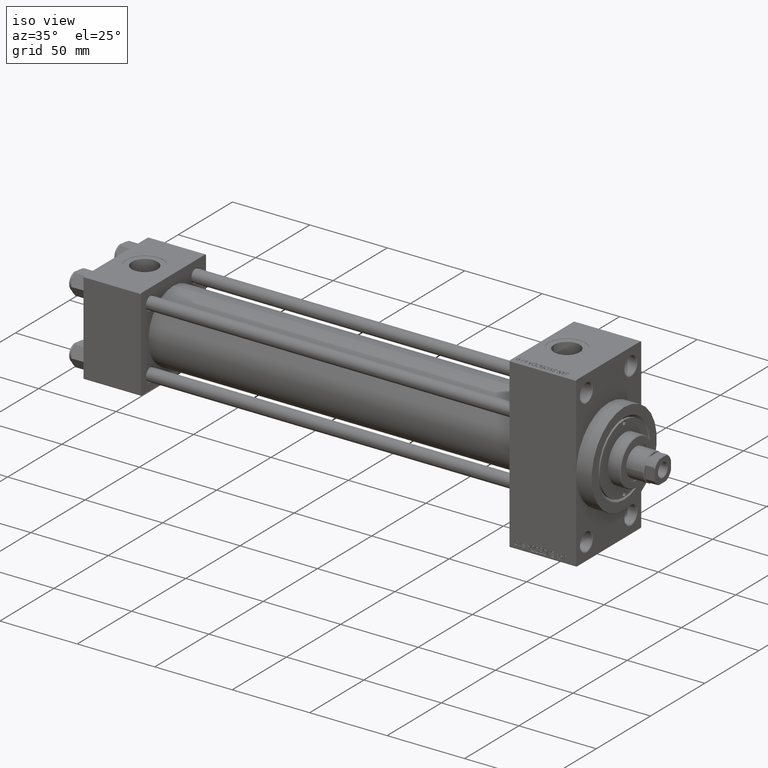
[diagram: clean part render]
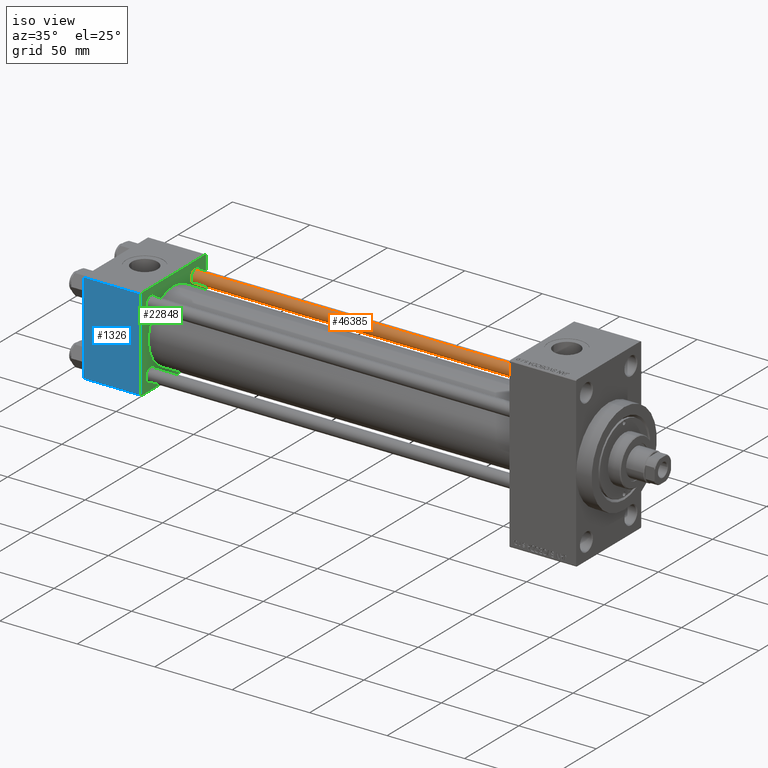
[diagram: same view with three faces highlighted in distinct colors, each labeled with its STEP entity id]
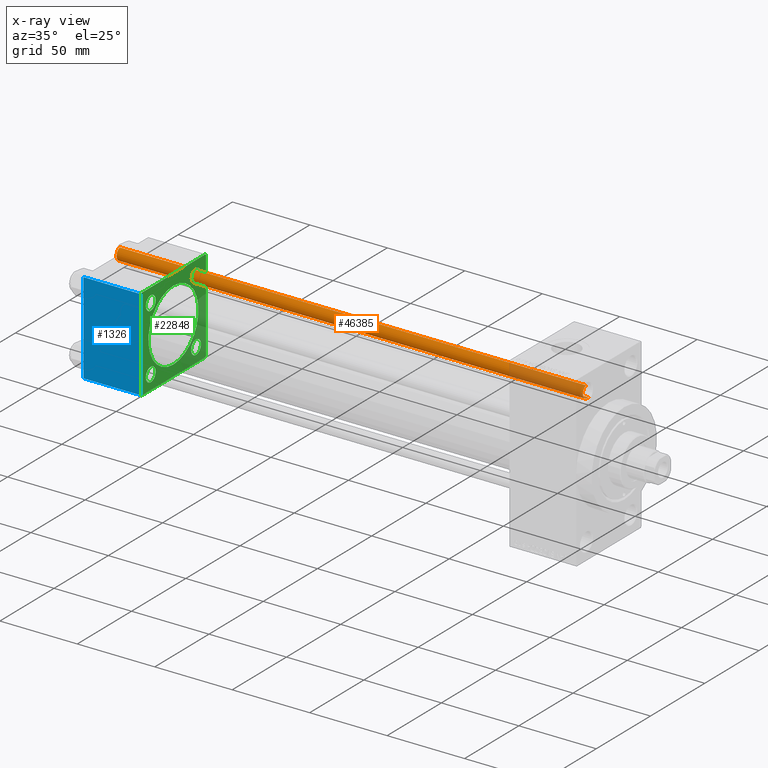
[diagram: x-ray of the same camera — body ghosted, the three highlighted faces saturated]
A machine part, iso view with three faces highlighted in distinct colors.
The next image is the same camera in x-ray (body ghosted, the three faces saturated) — at least one of them is partly hidden behind the body in this view.
Their STEP definitions:

[orange] entity #46385 — the highlighted cylindrical surface (edge-blend (fillet) strip) has radius 4 mm, axis along (-1, -0, 0).
#224 = ORIENTED_EDGE ( 'NONE', *, *, #47746, .T. ) ;
#358 = ORIENTED_EDGE ( 'NONE', *, *, #23508, .T. ) ;
#392 = CARTESIAN_POINT ( 'NONE',  ( -4.000000000000000000, 0.000000000000000000, 301.4999999999999432 ) ) ;
#821 = AXIS2_PLACEMENT_3D ( 'NONE', #8523, #24049, #16775 ) ;
#1016 = CYLINDRICAL_SURFACE ( 'NONE', #821, 4.000000000000000000 ) ;
#2861 = CARTESIAN_POINT ( 'NONE',  ( 4.000000000000000000, 4.898587196589412829E-16, 0.5000000000000559552 ) ) ;
#3375 = DIRECTION ( 'NONE',  ( -0.000000000000000000, -0.000000000000000000, -1.000000000000000000 ) ) ;
#3736 = CARTESIAN_POINT ( 'NONE',  ( 0.000000000000000000, 0.000000000000000000, 0.5000000000000559552 ) ) ;
#4002 = VECTOR ( 'NONE', #3375, 1000.000000000000000 ) ;
#6105 = CARTESIAN_POINT ( 'NONE',  ( 0.000000000000000000, 0.000000000000000000, 301.4999999999999432 ) ) ;
#6596 = DIRECTION ( 'NONE',  ( 0.000000000000000000, 0.000000000000000000, -1.000000000000000000 ) ) ;
#7028 = EDGE_CURVE ( 'NONE', #20314, #47766, #22892, .T. ) ;
#7427 = AXIS2_PLACEMENT_3D ( 'NONE', #6105, #6596, #9870 ) ;
#8523 = CARTESIAN_POINT ( 'NONE',  ( 0.000000000000000000, 0.000000000000000000, 302.0000000000000000 ) ) ;
#8620 = ORIENTED_EDGE ( 'NONE', *, *, #19211, .F. ) ;
#8774 = FACE_OUTER_BOUND ( 'NONE', #28756, .T. ) ;
#9645 = LINE ( 'NONE', #41148, #45346 ) ;
#9870 = DIRECTION ( 'NONE',  ( 1.000000000000000000, 0.000000000000000000, 0.000000000000000000 ) ) ;
#16775 = DIRECTION ( 'NONE',  ( -1.000000000000000000, 0.000000000000000000, 0.000000000000000000 ) ) ;
#17304 = AXIS2_PLACEMENT_3D ( 'NONE', #3736, #23013, #19022 ) ;
#19022 = DIRECTION ( 'NONE',  ( 1.000000000000000000, 0.000000000000000000, 0.000000000000000000 ) ) ;
#19211 = EDGE_CURVE ( 'NONE', #47309, #47766, #22417, .T. ) ;
#20314 = VERTEX_POINT ( 'NONE', #35693 ) ;
#20332 = VERTEX_POINT ( 'NONE', #392 ) ;
#21666 = CARTESIAN_POINT ( 'NONE',  ( 4.000000000000000000, 4.898587196589412829E-16, 302.0000000000000000 ) ) ;
#22417 = LINE ( 'NONE', #21666, #4002 ) ;
#22632 = CIRCLE ( 'NONE', #7427, 4.000000000000000000 ) ;
#22892 = CIRCLE ( 'NONE', #17304, 4.000000000000000000 ) ;
#23013 = DIRECTION ( 'NONE',  ( -0.000000000000000000, -0.000000000000000000, 1.000000000000000000 ) ) ;
#23102 = ORIENTED_EDGE ( 'NONE', *, *, #7028, .T. ) ;
#23508 = EDGE_CURVE ( 'NONE', #47309, #20332, #22632, .T. ) ;
#24049 = DIRECTION ( 'NONE',  ( -0.000000000000000000, -0.000000000000000000, -1.000000000000000000 ) ) ;
#24911 = DIRECTION ( 'NONE',  ( -0.000000000000000000, -0.000000000000000000, -1.000000000000000000 ) ) ;
#28756 = EDGE_LOOP ( 'NONE', ( #8620, #358, #224, #23102 ) ) ;
#32233 = CARTESIAN_POINT ( 'NONE',  ( 4.000000000000000000, 4.898587196589412829E-16, 301.4999999999999432 ) ) ;
#35693 = CARTESIAN_POINT ( 'NONE',  ( -4.000000000000000000, 0.000000000000000000, 0.5000000000000559552 ) ) ;
#41148 = CARTESIAN_POINT ( 'NONE',  ( -4.000000000000000000, 0.000000000000000000, 302.0000000000000000 ) ) ;
#45346 = VECTOR ( 'NONE', #24911, 1000.000000000000000 ) ;
#46385 = ADVANCED_FACE ( 'NONE', ( #8774 ), #1016, .T. ) ;
#47309 = VERTEX_POINT ( 'NONE', #32233 ) ;
#47746 = EDGE_CURVE ( 'NONE', #20332, #20314, #9645, .T. ) ;
#47766 = VERTEX_POINT ( 'NONE', #2861 ) ;

[blue] entity #1326 — the highlighted planar face has unit normal (0, 1, 0).
#439 = VERTEX_POINT ( 'NONE', #47847 ) ;
#996 = CARTESIAN_POINT ( 'NONE',  ( 37.00000000000000000, -30.00000000000000000, 29.99999999999999289 ) ) ;
#1326 = ADVANCED_FACE ( 'NONE', ( #16625 ), #16877, .F. ) ;
#1446 = VECTOR ( 'NONE', #38776, 1000.000000000000000 ) ;
#1610 = CARTESIAN_POINT ( 'NONE',  ( 37.00000000000000000, -30.00000000000000000, 29.99999999999999289 ) ) ;
#3383 = ORIENTED_EDGE ( 'NONE', *, *, #7800, .T. ) ;
#3945 = VECTOR ( 'NONE', #26811, 1000.000000000000000 ) ;
#4741 = DIRECTION ( 'NONE',  ( 0.000000000000000000, 0.000000000000000000, -1.000000000000000000 ) ) ;
#6126 = ORIENTED_EDGE ( 'NONE', *, *, #11920, .T. ) ;
#6721 = CARTESIAN_POINT ( 'NONE',  ( 0.000000000000000000, -30.00000000000000000, 29.49999999999999289 ) ) ;
#7800 = EDGE_CURVE ( 'NONE', #42325, #439, #23021, .T. ) ;
#8932 = EDGE_LOOP ( 'NONE', ( #3383, #39229, #12375, #6126 ) ) ;
#11315 = CARTESIAN_POINT ( 'NONE',  ( 37.00000000000000000, -30.00000000000000000, -29.50000000000001776 ) ) ;
#11920 = EDGE_CURVE ( 'NONE', #46609, #42325, #32186, .T. ) ;
#12375 = ORIENTED_EDGE ( 'NONE', *, *, #22873, .F. ) ;
#14779 = EDGE_CURVE ( 'NONE', #439, #25434, #33594, .T. ) ;
#16625 = FACE_OUTER_BOUND ( 'NONE', #8932, .T. ) ;
#16877 = PLANE ( 'NONE',  #26789 ) ;
#21022 = VECTOR ( 'NONE', #4741, 1000.000000000000000 ) ;
#22873 = EDGE_CURVE ( 'NONE', #46609, #25434, #35302, .T. ) ;
#23021 = LINE ( 'NONE', #34295, #30115 ) ;
#23507 = CARTESIAN_POINT ( 'NONE',  ( 37.00000000000000000, -30.00000000000000000, 29.49999999999999289 ) ) ;
#25434 = VERTEX_POINT ( 'NONE', #45723 ) ;
#26789 = AXIS2_PLACEMENT_3D ( 'NONE', #1610, #47409, #31900 ) ;
#26811 = DIRECTION ( 'NONE',  ( 1.000000000000000000, 0.000000000000000000, 0.000000000000000000 ) ) ;
#30115 = VECTOR ( 'NONE', #34042, 1000.000000000000000 ) ;
#31900 = DIRECTION ( 'NONE',  ( 0.000000000000000000, -0.000000000000000000, 1.000000000000000000 ) ) ;
#32186 = LINE ( 'NONE', #23507, #1446 ) ;
#33594 = LINE ( 'NONE', #11315, #3945 ) ;
#34042 = DIRECTION ( 'NONE',  ( 0.000000000000000000, 0.000000000000000000, -1.000000000000000000 ) ) ;
#34295 = CARTESIAN_POINT ( 'NONE',  ( 0.000000000000000000, -30.00000000000000000, 29.99999999999999289 ) ) ;
#35302 = LINE ( 'NONE', #996, #21022 ) ;
#38776 = DIRECTION ( 'NONE',  ( -1.000000000000000000, 0.000000000000000000, 0.000000000000000000 ) ) ;
#39229 = ORIENTED_EDGE ( 'NONE', *, *, #14779, .T. ) ;
#42325 = VERTEX_POINT ( 'NONE', #6721 ) ;
#43491 = CARTESIAN_POINT ( 'NONE',  ( 37.00000000000000000, -30.00000000000000000, 29.49999999999999289 ) ) ;
#45723 = CARTESIAN_POINT ( 'NONE',  ( 37.00000000000000000, -30.00000000000000000, -29.50000000000001776 ) ) ;
#46609 = VERTEX_POINT ( 'NONE', #43491 ) ;
#47409 = DIRECTION ( 'NONE',  ( -0.000000000000000000, 1.000000000000000000, 0.000000000000000000 ) ) ;
#47847 = CARTESIAN_POINT ( 'NONE',  ( 0.000000000000000000, -30.00000000000000000, -29.50000000000001776 ) ) ;

[green] entity #22848 — the highlighted planar face has unit normal (-1, 0, 0).
#6 = ORIENTED_EDGE ( 'NONE', *, *, #7421, .T. ) ;
#162 = VERTEX_POINT ( 'NONE', #40396 ) ;
#215 = ORIENTED_EDGE ( 'NONE', *, *, #32870, .F. ) ;
#571 = VERTEX_POINT ( 'NONE', #1472 ) ;
#614 = DIRECTION ( 'NONE',  ( 1.000000000000000000, -0.000000000000000000, 0.000000000000000000 ) ) ;
#911 = EDGE_CURVE ( 'NONE', #37519, #42496, #27473, .T. ) ;
#996 = CARTESIAN_POINT ( 'NONE',  ( 37.00000000000000000, -30.00000000000000000, 29.99999999999999289 ) ) ;
#1472 = CARTESIAN_POINT ( 'NONE',  ( 37.00000000000000711, 2.146024240737016609E-16, -23.00000000000000000 ) ) ;
#2057 = LINE ( 'NONE', #10075, #13654 ) ;
#2341 = DIRECTION ( 'NONE',  ( -0.000000000000000000, 0.000000000000000000, 1.000000000000000000 ) ) ;
#2503 = DIRECTION ( 'NONE',  ( -0.000000000000000000, -0.7071067811865474617, -0.7071067811865474617 ) ) ;
#3086 = CARTESIAN_POINT ( 'NONE',  ( 37.00000000000000000, 29.49999999999999289, 30.00000000000000000 ) ) ;
#3088 = AXIS2_PLACEMENT_3D ( 'NONE', #33307, #48569, #14769 ) ;
#3113 = CARTESIAN_POINT ( 'NONE',  ( 37.00000000000000000, 29.99999999999999289, -30.00000000000000000 ) ) ;
#3372 = DIRECTION ( 'NONE',  ( 0.000000000000000000, 0.000000000000000000, 1.000000000000000000 ) ) ;
#4741 = DIRECTION ( 'NONE',  ( 0.000000000000000000, 0.000000000000000000, -1.000000000000000000 ) ) ;
#4903 = DIRECTION ( 'NONE',  ( -1.000000000000000000, 0.000000000000000000, -0.000000000000000000 ) ) ;
#4997 = ORIENTED_EDGE ( 'NONE', *, *, #35683, .T. ) ;
#5018 = DIRECTION ( 'NONE',  ( -1.000000000000000000, 0.000000000000000000, -0.000000000000000000 ) ) ;
#6016 = VECTOR ( 'NONE', #31717, 1000.000000000000000 ) ;
#6088 = FACE_OUTER_BOUND ( 'NONE', #20640, .T. ) ;
#6119 = EDGE_CURVE ( 'NONE', #42496, #46609, #25276, .T. ) ;
#7101 = AXIS2_PLACEMENT_3D ( 'NONE', #24016, #27771, #34772 ) ;
#7235 = CARTESIAN_POINT ( 'NONE',  ( 37.00000000000000000, 29.49999999999997868, -30.00000000000000000 ) ) ;
#7421 = EDGE_CURVE ( 'NONE', #23994, #34185, #46221, .T. ) ;
#7543 = EDGE_CURVE ( 'NONE', #17480, #17857, #9304, .T. ) ;
#8114 = CARTESIAN_POINT ( 'NONE',  ( 37.00000000000000000, 29.99999999999999289, 29.50000000000000000 ) ) ;
#9065 = DIRECTION ( 'NONE',  ( -1.000000000000000000, 0.000000000000000000, -0.000000000000000000 ) ) ;
#9231 = DIRECTION ( 'NONE',  ( -1.000000000000000000, 0.000000000000000000, -0.000000000000000000 ) ) ;
#9304 = CIRCLE ( 'NONE', #29289, 4.499999999999948486 ) ;
#10005 = ORIENTED_EDGE ( 'NONE', *, *, #10029, .F. ) ;
#10029 = EDGE_CURVE ( 'NONE', #30020, #34185, #17389, .T. ) ;
#10049 = CIRCLE ( 'NONE', #20444, 4.499999999999948486 ) ;
#10075 = CARTESIAN_POINT ( 'NONE',  ( 37.00000000000000000, -29.50000000000001066, -30.00000000000000711 ) ) ;
#10356 = FACE_BOUND ( 'NONE', #25178, .T. ) ;
#12828 = EDGE_CURVE ( 'NONE', #15892, #17047, #35082, .T. ) ;
#13331 = CIRCLE ( 'NONE', #13371, 4.499999999999948486 ) ;
#13371 = AXIS2_PLACEMENT_3D ( 'NONE', #14249, #9065, #39355 ) ;
#13654 = VECTOR ( 'NONE', #20346, 1000.000000000000114 ) ;
#14122 = ORIENTED_EDGE ( 'NONE', *, *, #18527, .T. ) ;
#14249 = CARTESIAN_POINT ( 'NONE',  ( 37.00000000000000000, 20.84999999999999787, 20.85000000000000142 ) ) ;
#14352 = CARTESIAN_POINT ( 'NONE',  ( 37.00000000000000000, 0.000000000000000000, 0.000000000000000000 ) ) ;
#14769 = DIRECTION ( 'NONE',  ( 0.000000000000000000, 0.000000000000000000, 1.000000000000000000 ) ) ;
#14903 = CIRCLE ( 'NONE', #46092, 4.499999999999948486 ) ;
#15012 = AXIS2_PLACEMENT_3D ( 'NONE', #27825, #5018, #35570 ) ;
#15479 = VERTEX_POINT ( 'NONE', #42951 ) ;
#15892 = VERTEX_POINT ( 'NONE', #37094 ) ;
#16142 = CARTESIAN_POINT ( 'NONE',  ( 37.00000000000000000, 20.84999999999999787, -16.35000000000005116 ) ) ;
#16271 = ORIENTED_EDGE ( 'NONE', *, *, #6119, .T. ) ;
#16684 = CARTESIAN_POINT ( 'NONE',  ( 37.00000000000000000, 29.99999999999999289, 30.00000000000000000 ) ) ;
#17047 = VERTEX_POINT ( 'NONE', #32561 ) ;
#17389 = LINE ( 'NONE', #32667, #30216 ) ;
#17480 = VERTEX_POINT ( 'NONE', #42832 ) ;
#17540 = CIRCLE ( 'NONE', #33516, 23.00000000000000000 ) ;
#17740 = ORIENTED_EDGE ( 'NONE', *, *, #40392, .F. ) ;
#17857 = VERTEX_POINT ( 'NONE', #27007 ) ;
#18527 = EDGE_CURVE ( 'NONE', #30020, #37519, #37355, .T. ) ;
#18990 = CARTESIAN_POINT ( 'NONE',  ( 37.00000000000000000, 29.99999999999999289, -29.50000000000000000 ) ) ;
#19023 = CIRCLE ( 'NONE', #15012, 4.499999999999948486 ) ;
#20346 = DIRECTION ( 'NONE',  ( 0.000000000000000000, 0.7071067811865474617, -0.7071067811865474617 ) ) ;
#20444 = AXIS2_PLACEMENT_3D ( 'NONE', #42958, #4903, #23937 ) ;
#20640 = EDGE_LOOP ( 'NONE', ( #29212, #6, #10005, #14122, #47700, #16271, #37132, #43889 ) ) ;
#21022 = VECTOR ( 'NONE', #4741, 1000.000000000000000 ) ;
#21032 = VERTEX_POINT ( 'NONE', #38583 ) ;
#21969 = CARTESIAN_POINT ( 'NONE',  ( 37.00000000000000000, 20.84999999999999787, -20.85000000000000142 ) ) ;
#22143 = LINE ( 'NONE', #3113, #25938 ) ;
#22848 = ADVANCED_FACE ( 'NONE', ( #44145, #10356, #25114, #40385, #37117, #6088 ), #44634, .F. ) ;
#22873 = EDGE_CURVE ( 'NONE', #46609, #25434, #35302, .T. ) ;
#23121 = EDGE_CURVE ( 'NONE', #43741, #37307, #43422, .T. ) ;
#23310 = EDGE_LOOP ( 'NONE', ( #35165, #4997 ) ) ;
#23438 = CARTESIAN_POINT ( 'NONE',  ( 37.00000000000000000, 29.99999999999999289, -29.50000000000000000 ) ) ;
#23937 = DIRECTION ( 'NONE',  ( 0.000000000000000000, 0.000000000000000000, 1.000000000000000000 ) ) ;
#23994 = VERTEX_POINT ( 'NONE', #7235 ) ;
#24016 = CARTESIAN_POINT ( 'NONE',  ( 37.00000000000000000, -20.84999999999999076, 20.85000000000000497 ) ) ;
#25114 = FACE_BOUND ( 'NONE', #48089, .T. ) ;
#25178 = EDGE_LOOP ( 'NONE', ( #44191, #42740 ) ) ;
#25276 = LINE ( 'NONE', #36810, #31645 ) ;
#25299 = CARTESIAN_POINT ( 'NONE',  ( 37.00000000000000711, -2.602085213965210642E-15, 0.000000000000000000 ) ) ;
#25434 = VERTEX_POINT ( 'NONE', #45723 ) ;
#25778 = EDGE_CURVE ( 'NONE', #23994, #21032, #22143, .T. ) ;
#25938 = VECTOR ( 'NONE', #26635, 1000.000000000000000 ) ;
#26413 = CARTESIAN_POINT ( 'NONE',  ( 37.00000000000000000, 20.84999999999999787, 20.85000000000000142 ) ) ;
#26635 = DIRECTION ( 'NONE',  ( 0.000000000000000000, -1.000000000000000000, -1.156482317317871725E-16 ) ) ;
#26643 = ORIENTED_EDGE ( 'NONE', *, *, #12828, .T. ) ;
#26887 = VECTOR ( 'NONE', #31211, 999.9999999999998863 ) ;
#27007 = CARTESIAN_POINT ( 'NONE',  ( 37.00000000000000000, 20.84999999999999787, 25.34999999999994813 ) ) ;
#27473 = LINE ( 'NONE', #16684, #6016 ) ;
#27771 = DIRECTION ( 'NONE',  ( -1.000000000000000000, 0.000000000000000000, -0.000000000000000000 ) ) ;
#27825 = CARTESIAN_POINT ( 'NONE',  ( 37.00000000000000000, -20.84999999999999076, 20.85000000000000497 ) ) ;
#28966 = EDGE_CURVE ( 'NONE', #17047, #15892, #10049, .T. ) ;
#29014 = DIRECTION ( 'NONE',  ( 0.000000000000000000, 0.000000000000000000, 1.000000000000000000 ) ) ;
#29212 = ORIENTED_EDGE ( 'NONE', *, *, #25778, .F. ) ;
#29264 = ORIENTED_EDGE ( 'NONE', *, *, #39666, .T. ) ;
#29289 = AXIS2_PLACEMENT_3D ( 'NONE', #26413, #30642, #3372 ) ;
#29566 = DIRECTION ( 'NONE',  ( 0.000000000000000000, 0.000000000000000000, 1.000000000000000000 ) ) ;
#29650 = ORIENTED_EDGE ( 'NONE', *, *, #48525, .T. ) ;
#30020 = VERTEX_POINT ( 'NONE', #8114 ) ;
#30216 = VECTOR ( 'NONE', #47927, 1000.000000000000000 ) ;
#30642 = DIRECTION ( 'NONE',  ( -1.000000000000000000, 0.000000000000000000, -0.000000000000000000 ) ) ;
#31211 = DIRECTION ( 'NONE',  ( -0.000000000000000000, 0.7071067811865574537, 0.7071067811865376918 ) ) ;
#31645 = VECTOR ( 'NONE', #2503, 1000.000000000000114 ) ;
#31717 = DIRECTION ( 'NONE',  ( 0.000000000000000000, -1.000000000000000000, -1.156482317317871725E-16 ) ) ;
#31751 = EDGE_CURVE ( 'NONE', #37307, #43741, #14903, .T. ) ;
#32462 = CARTESIAN_POINT ( 'NONE',  ( 37.00000000000000000, -29.49999999999998579, 29.99999999999999289 ) ) ;
#32561 = CARTESIAN_POINT ( 'NONE',  ( 37.00000000000000000, -20.84999999999999076, -16.35000000000005471 ) ) ;
#32667 = CARTESIAN_POINT ( 'NONE',  ( 37.00000000000000000, 29.99999999999999289, 30.00000000000000000 ) ) ;
#32769 = CARTESIAN_POINT ( 'NONE',  ( 37.00000000000000000, 20.84999999999999787, -20.85000000000000142 ) ) ;
#32870 = EDGE_CURVE ( 'NONE', #571, #15479, #48406, .T. ) ;
#33307 = CARTESIAN_POINT ( 'NONE',  ( 37.00000000000000000, -20.84999999999999076, -20.85000000000000497 ) ) ;
#33484 = DIRECTION ( 'NONE',  ( 0.000000000000000000, 0.000000000000000000, 1.000000000000000000 ) ) ;
#33516 = AXIS2_PLACEMENT_3D ( 'NONE', #25299, #40563, #29566 ) ;
#33552 = CARTESIAN_POINT ( 'NONE',  ( 37.00000000000000000, -20.84999999999999076, 25.34999999999995168 ) ) ;
#33610 = CARTESIAN_POINT ( 'NONE',  ( 37.00000000000000000, 29.49999999999999289, 30.00000000000000000 ) ) ;
#33815 = AXIS2_PLACEMENT_3D ( 'NONE', #14352, #36642, #2341 ) ;
#34131 = AXIS2_PLACEMENT_3D ( 'NONE', #38659, #614, #39393 ) ;
#34141 = CARTESIAN_POINT ( 'NONE',  ( 37.00000000000000000, 20.84999999999999787, -25.34999999999994813 ) ) ;
#34185 = VERTEX_POINT ( 'NONE', #18990 ) ;
#34772 = DIRECTION ( 'NONE',  ( 0.000000000000000000, 0.000000000000000000, 1.000000000000000000 ) ) ;
#35082 = CIRCLE ( 'NONE', #3088, 4.499999999999948486 ) ;
#35165 = ORIENTED_EDGE ( 'NONE', *, *, #7543, .T. ) ;
#35302 = LINE ( 'NONE', #996, #21022 ) ;
#35430 = ORIENTED_EDGE ( 'NONE', *, *, #28966, .T. ) ;
#35570 = DIRECTION ( 'NONE',  ( 0.000000000000000000, 0.000000000000000000, 1.000000000000000000 ) ) ;
#35683 = EDGE_CURVE ( 'NONE', #17857, #17480, #13331, .T. ) ;
#36642 = DIRECTION ( 'NONE',  ( -1.000000000000000000, 0.000000000000000000, -0.000000000000000000 ) ) ;
#36665 = CIRCLE ( 'NONE', #7101, 4.499999999999948486 ) ;
#36810 = CARTESIAN_POINT ( 'NONE',  ( 37.00000000000000000, -30.00000000000000000, 29.49999999999999289 ) ) ;
#37094 = CARTESIAN_POINT ( 'NONE',  ( 37.00000000000000000, -20.84999999999999076, -25.34999999999995168 ) ) ;
#37117 = FACE_BOUND ( 'NONE', #46985, .T. ) ;
#37132 = ORIENTED_EDGE ( 'NONE', *, *, #22873, .T. ) ;
#37234 = DIRECTION ( 'NONE',  ( -1.000000000000000000, 0.000000000000000000, -0.000000000000000000 ) ) ;
#37307 = VERTEX_POINT ( 'NONE', #16142 ) ;
#37355 = LINE ( 'NONE', #33610, #47964 ) ;
#37519 = VERTEX_POINT ( 'NONE', #3086 ) ;
#38340 = DIRECTION ( 'NONE',  ( 0.000000000000000000, -0.7071067811865474617, 0.7071067811865474617 ) ) ;
#38583 = CARTESIAN_POINT ( 'NONE',  ( 37.00000000000000000, -29.50000000000000000, -30.00000000000000711 ) ) ;
#38659 = CARTESIAN_POINT ( 'NONE',  ( 37.00000000000000711, -2.602085213965210642E-15, 0.000000000000000000 ) ) ;
#39355 = DIRECTION ( 'NONE',  ( 0.000000000000000000, 0.000000000000000000, 1.000000000000000000 ) ) ;
#39393 = DIRECTION ( 'NONE',  ( 0.000000000000000000, 0.000000000000000000, 1.000000000000000000 ) ) ;
#39407 = AXIS2_PLACEMENT_3D ( 'NONE', #32769, #9231, #29014 ) ;
#39594 = VERTEX_POINT ( 'NONE', #33552 ) ;
#39666 = EDGE_CURVE ( 'NONE', #39594, #162, #36665, .T. ) ;
#40385 = FACE_BOUND ( 'NONE', #23310, .T. ) ;
#40392 = EDGE_CURVE ( 'NONE', #15479, #571, #17540, .T. ) ;
#40396 = CARTESIAN_POINT ( 'NONE',  ( 37.00000000000000000, -20.84999999999999076, 16.35000000000005471 ) ) ;
#40563 = DIRECTION ( 'NONE',  ( 1.000000000000000000, -0.000000000000000000, 0.000000000000000000 ) ) ;
#42021 = EDGE_LOOP ( 'NONE', ( #26643, #35430 ) ) ;
#42496 = VERTEX_POINT ( 'NONE', #32462 ) ;
#42740 = ORIENTED_EDGE ( 'NONE', *, *, #31751, .T. ) ;
#42832 = CARTESIAN_POINT ( 'NONE',  ( 37.00000000000000000, 20.84999999999999787, 16.35000000000005116 ) ) ;
#42951 = CARTESIAN_POINT ( 'NONE',  ( 37.00000000000000711, -2.602085213965210642E-15, 23.00000000000000000 ) ) ;
#42958 = CARTESIAN_POINT ( 'NONE',  ( 37.00000000000000000, -20.84999999999999076, -20.85000000000000497 ) ) ;
#43422 = CIRCLE ( 'NONE', #39407, 4.499999999999948486 ) ;
#43491 = CARTESIAN_POINT ( 'NONE',  ( 37.00000000000000000, -30.00000000000000000, 29.49999999999999289 ) ) ;
#43741 = VERTEX_POINT ( 'NONE', #34141 ) ;
#43889 = ORIENTED_EDGE ( 'NONE', *, *, #44125, .T. ) ;
#44125 = EDGE_CURVE ( 'NONE', #25434, #21032, #2057, .T. ) ;
#44145 = FACE_BOUND ( 'NONE', #42021, .T. ) ;
#44191 = ORIENTED_EDGE ( 'NONE', *, *, #23121, .T. ) ;
#44634 = PLANE ( 'NONE',  #33815 ) ;
#45723 = CARTESIAN_POINT ( 'NONE',  ( 37.00000000000000000, -30.00000000000000000, -29.50000000000001776 ) ) ;
#46092 = AXIS2_PLACEMENT_3D ( 'NONE', #21969, #37234, #33484 ) ;
#46221 = LINE ( 'NONE', #23438, #26887 ) ;
#46609 = VERTEX_POINT ( 'NONE', #43491 ) ;
#46985 = EDGE_LOOP ( 'NONE', ( #17740, #215 ) ) ;
#47700 = ORIENTED_EDGE ( 'NONE', *, *, #911, .T. ) ;
#47927 = DIRECTION ( 'NONE',  ( 0.000000000000000000, 0.000000000000000000, -1.000000000000000000 ) ) ;
#47964 = VECTOR ( 'NONE', #38340, 1000.000000000000114 ) ;
#48089 = EDGE_LOOP ( 'NONE', ( #29650, #29264 ) ) ;
#48406 = CIRCLE ( 'NONE', #34131, 23.00000000000000000 ) ;
#48525 = EDGE_CURVE ( 'NONE', #162, #39594, #19023, .T. ) ;
#48569 = DIRECTION ( 'NONE',  ( -1.000000000000000000, 0.000000000000000000, -0.000000000000000000 ) ) ;